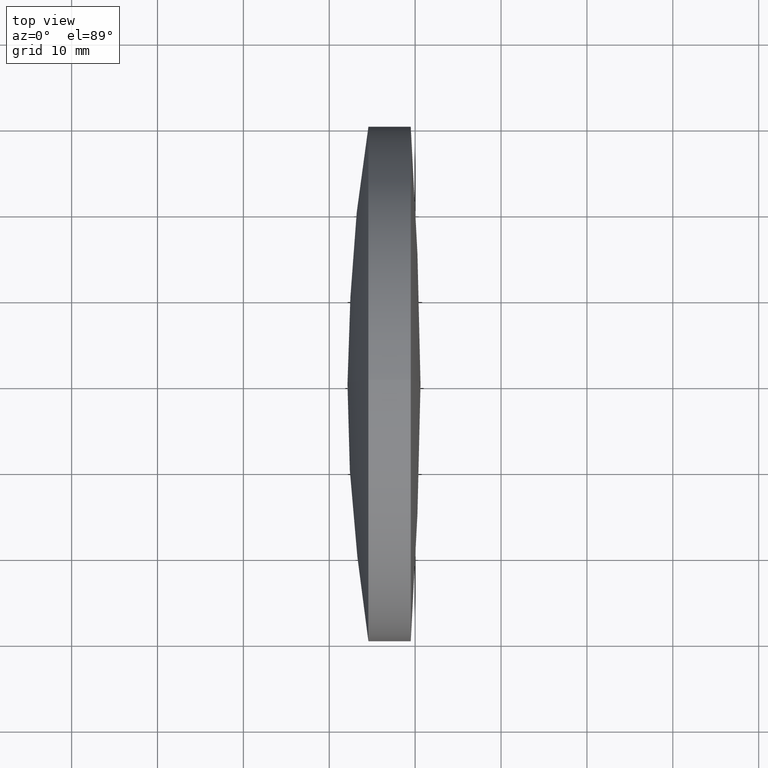
[diagram: clean part render]
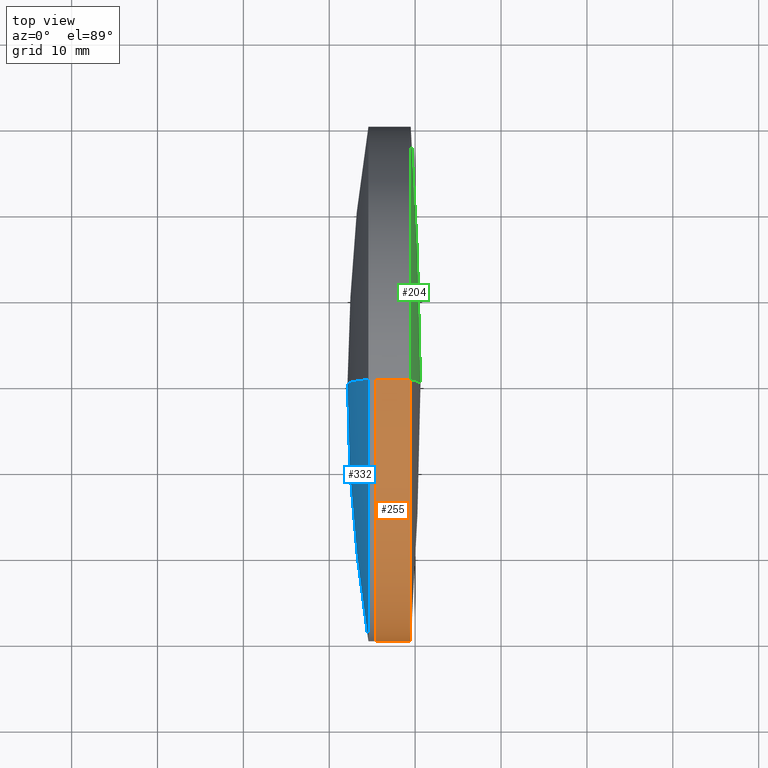
[diagram: same view with three faces highlighted in distinct colors, each labeled with its STEP entity id]
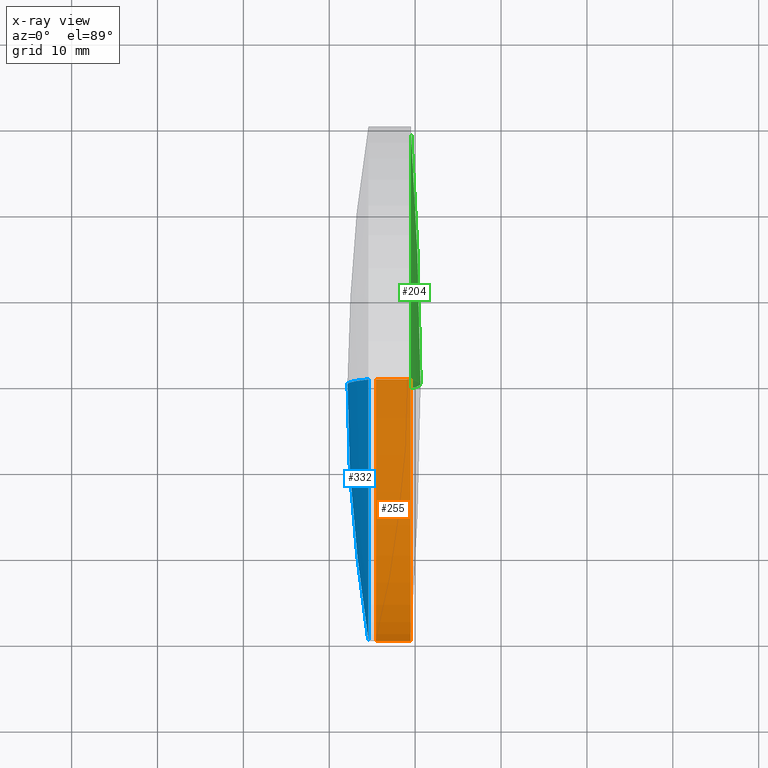
[diagram: x-ray of the same camera — body ghosted, the three highlighted faces saturated]
A machine part, top view with three faces highlighted in distinct colors.
The next image is the same camera in x-ray (body ghosted, the three faces saturated) — at least one of them is partly hidden behind the body in this view.
Their STEP definitions:

[orange] entity #255 — the highlighted cylindrical surface (partial cylindrical patch) has radius 30 mm, axis along (-1, -0, -0).
#14 = ORIENTED_EDGE ( 'NONE', *, *, #132, .F. ) ;
#16 = DIRECTION ( 'NONE',  ( -1.000000000000000000, -0.0000000000000000000, -0.0000000000000000000 ) ) ;
#22 = CARTESIAN_POINT ( 'NONE',  ( -0.5519199926577972300, 3.673940397442057600E-015, -29.99999999999998600 ) ) ;
#28 = AXIS2_PLACEMENT_3D ( 'NONE', #120, #16, #295 ) ;
#32 = CYLINDRICAL_SURFACE ( 'NONE', #312, 29.99999999999998600 ) ;
#61 = DIRECTION ( 'NONE',  ( -1.000000000000000000, -0.0000000000000000000, -0.0000000000000000000 ) ) ;
#62 = CIRCLE ( 'NONE', #141, 29.99999999999995000 ) ;
#63 = VERTEX_POINT ( 'NONE', #140 ) ;
#75 = CARTESIAN_POINT ( 'NONE',  ( 335.4079976636520000, 0.0000000000000000000, 30.00000000000001100 ) ) ;
#86 = EDGE_CURVE ( 'NONE', #227, #231, #62, .T. ) ;
#94 = CIRCLE ( 'NONE', #28, 30.00000000000002500 ) ;
#113 = VERTEX_POINT ( 'NONE', #75 ) ;
#115 = ORIENTED_EDGE ( 'NONE', *, *, #86, .T. ) ;
#120 = CARTESIAN_POINT ( 'NONE',  ( 335.4079976636520000, 0.0000000000000000000, 0.0000000000000000000 ) ) ;
#132 = EDGE_CURVE ( 'NONE', #227, #63, #306, .T. ) ;
#140 = CARTESIAN_POINT ( 'NONE',  ( 335.4079976636520000, 3.673940397442060800E-015, -30.00000000000001100 ) ) ;
#141 = AXIS2_PLACEMENT_3D ( 'NONE', #246, #183, #282 ) ;
#161 = ORIENTED_EDGE ( 'NONE', *, *, #197, .T. ) ;
#170 = EDGE_CURVE ( 'NONE', #63, #113, #94, .T. ) ;
#175 = CARTESIAN_POINT ( 'NONE',  ( -0.5519199926577972300, 0.0000000000000000000, 0.0000000000000000000 ) ) ;
#177 = CARTESIAN_POINT ( 'NONE',  ( 339.4863533443066800, 0.0000000000000000000, 29.99999999999995000 ) ) ;
#183 = DIRECTION ( 'NONE',  ( -1.000000000000000000, -0.0000000000000000000, -0.0000000000000000000 ) ) ;
#197 = EDGE_CURVE ( 'NONE', #231, #113, #331, .T. ) ;
#199 = FACE_OUTER_BOUND ( 'NONE', #209, .T. ) ;
#209 = EDGE_LOOP ( 'NONE', ( #14, #115, #161, #340 ) ) ;
#227 = VERTEX_POINT ( 'NONE', #262 ) ;
#231 = VERTEX_POINT ( 'NONE', #177 ) ;
#239 = VECTOR ( 'NONE', #272, 1000.000000000000000 ) ;
#246 = CARTESIAN_POINT ( 'NONE',  ( 339.4863533443066800, 0.0000000000000000000, 0.0000000000000000000 ) ) ;
#255 = ADVANCED_FACE ( 'NONE', ( #199 ), #32, .T. ) ;
#262 = CARTESIAN_POINT ( 'NONE',  ( 339.4863533443066800, 3.673940397442055200E-015, -29.99999999999995000 ) ) ;
#272 = DIRECTION ( 'NONE',  ( -1.000000000000000000, -0.0000000000000000000, -0.0000000000000000000 ) ) ;
#282 = DIRECTION ( 'NONE',  ( 0.0000000000000000000, 0.0000000000000000000, 1.000000000000000000 ) ) ;
#295 = DIRECTION ( 'NONE',  ( 0.0000000000000000000, 0.0000000000000000000, 1.000000000000000000 ) ) ;
#305 = DIRECTION ( 'NONE',  ( 0.0000000000000000000, 0.0000000000000000000, 1.000000000000000000 ) ) ;
#306 = LINE ( 'NONE', #22, #239 ) ;
#312 = AXIS2_PLACEMENT_3D ( 'NONE', #175, #61, #305 ) ;
#316 = CARTESIAN_POINT ( 'NONE',  ( -0.5519199926577972300, 0.0000000000000000000, 29.99999999999998600 ) ) ;
#319 = VECTOR ( 'NONE', #344, 1000.000000000000000 ) ;
#331 = LINE ( 'NONE', #316, #319 ) ;
#340 = ORIENTED_EDGE ( 'NONE', *, *, #170, .F. ) ;
#344 = DIRECTION ( 'NONE',  ( -1.000000000000000000, -0.0000000000000000000, -0.0000000000000000000 ) ) ;

[blue] entity #332 — the highlighted spherical surface has radius 186.1 mm.
#11 = AXIS2_PLACEMENT_3D ( 'NONE', #67, #30, #281 ) ;
#17 = EDGE_CURVE ( 'NONE', #201, #33, #265, .T. ) ;
#23 = CIRCLE ( 'NONE', #49, 186.1000000000000200 ) ;
#30 = DIRECTION ( 'NONE',  ( 0.0000000000000000000, 1.000000000000000000, 0.0000000000000000000 ) ) ;
#33 = VERTEX_POINT ( 'NONE', #77 ) ;
#34 = ORIENTED_EDGE ( 'NONE', *, *, #241, .T. ) ;
#49 = AXIS2_PLACEMENT_3D ( 'NONE', #274, #76, #269 ) ;
#67 = CARTESIAN_POINT ( 'NONE',  ( 518.2226255512254100, 0.0000000000000000000, -3.517525629549590600E-015 ) ) ;
#76 = DIRECTION ( 'NONE',  ( 0.0000000000000000000, -1.000000000000000000, 0.0000000000000000000 ) ) ;
#77 = CARTESIAN_POINT ( 'NONE',  ( 332.1226255512253800, 0.0000000000000000000, 7.877812836516531800E-015 ) ) ;
#87 = VERTEX_POINT ( 'NONE', #343 ) ;
#145 = ORIENTED_EDGE ( 'NONE', *, *, #17, .F. ) ;
#148 = DIRECTION ( 'NONE',  ( -1.000000000000000000, -0.0000000000000000000, -0.0000000000000000000 ) ) ;
#156 = EDGE_CURVE ( 'NONE', #201, #87, #172, .T. ) ;
#172 = CIRCLE ( 'NONE', #283, 29.99999999999999600 ) ;
#195 = CARTESIAN_POINT ( 'NONE',  ( 518.2226255512254100, 0.0000000000000000000, -3.517525629549590600E-015 ) ) ;
#201 = VERTEX_POINT ( 'NONE', #254 ) ;
#225 = DIRECTION ( 'NONE',  ( 0.0000000000000000000, -1.224646799147353000E-016, 1.000000000000000000 ) ) ;
#234 = CARTESIAN_POINT ( 'NONE',  ( 334.5565971191825300, 0.0000000000000000000, 0.0000000000000000000 ) ) ;
#241 = EDGE_CURVE ( 'NONE', #87, #33, #23, .T. ) ;
#254 = CARTESIAN_POINT ( 'NONE',  ( 334.5565971191825300, 3.673940397442056800E-015, -29.99999999999998200 ) ) ;
#258 = SPHERICAL_SURFACE ( 'NONE', #11, 186.1000000000000200 ) ;
#265 = CIRCLE ( 'NONE', #297, 186.1000000000000200 ) ;
#267 = ORIENTED_EDGE ( 'NONE', *, *, #156, .T. ) ;
#269 = DIRECTION ( 'NONE',  ( 0.0000000000000000000, 0.0000000000000000000, -1.000000000000000000 ) ) ;
#274 = CARTESIAN_POINT ( 'NONE',  ( 518.2226255512254100, 0.0000000000000000000, -3.517525629549590600E-015 ) ) ;
#281 = DIRECTION ( 'NONE',  ( 0.0000000000000000000, 0.0000000000000000000, 1.000000000000000000 ) ) ;
#283 = AXIS2_PLACEMENT_3D ( 'NONE', #234, #148, #289 ) ;
#289 = DIRECTION ( 'NONE',  ( 0.0000000000000000000, 0.0000000000000000000, 1.000000000000000000 ) ) ;
#293 = DIRECTION ( 'NONE',  ( -0.0000000000000000000, 1.000000000000000000, 1.224646799147353200E-016 ) ) ;
#297 = AXIS2_PLACEMENT_3D ( 'NONE', #195, #293, #225 ) ;
#311 = EDGE_LOOP ( 'NONE', ( #145, #267, #34 ) ) ;
#332 = ADVANCED_FACE ( 'NONE', ( #337 ), #258, .T. ) ;
#337 = FACE_OUTER_BOUND ( 'NONE', #311, .T. ) ;
#343 = CARTESIAN_POINT ( 'NONE',  ( 334.5565971191825300, 0.0000000000000000000, 29.99999999999997900 ) ) ;

[green] entity #204 — the highlighted spherical surface has radius 396.6 mm.
#2 = ORIENTED_EDGE ( 'NONE', *, *, #171, .F. ) ;
#5 = CARTESIAN_POINT ( 'NONE',  ( -55.97737444877426300, 0.0000000000000000000, 0.0000000000000000000 ) ) ;
#7 = EDGE_CURVE ( 'NONE', #15, #227, #206, .T. ) ;
#15 = VERTEX_POINT ( 'NONE', #129 ) ;
#26 = DIRECTION ( 'NONE',  ( 0.0000000000000000000, 0.0000000000000000000, 1.000000000000000000 ) ) ;
#31 = CIRCLE ( 'NONE', #235, 29.99999999999995000 ) ;
#42 = CARTESIAN_POINT ( 'NONE',  ( 339.4863533443066800, 0.0000000000000000000, 0.0000000000000000000 ) ) ;
#47 = EDGE_CURVE ( 'NONE', #15, #231, #92, .T. ) ;
#66 = DIRECTION ( 'NONE',  ( -1.000000000000000000, -0.0000000000000000000, -0.0000000000000000000 ) ) ;
#81 = CARTESIAN_POINT ( 'NONE',  ( -55.97737444877426300, 0.0000000000000000000, 0.0000000000000000000 ) ) ;
#89 = AXIS2_PLACEMENT_3D ( 'NONE', #251, #220, #104 ) ;
#92 = CIRCLE ( 'NONE', #244, 396.6000000000000200 ) ;
#104 = DIRECTION ( 'NONE',  ( 0.0000000000000000000, -1.224646799147353200E-016, 1.000000000000000000 ) ) ;
#123 = DIRECTION ( 'NONE',  ( 0.0000000000000000000, -1.000000000000000000, 0.0000000000000000000 ) ) ;
#124 = AXIS2_PLACEMENT_3D ( 'NONE', #81, #247, #26 ) ;
#129 = CARTESIAN_POINT ( 'NONE',  ( 340.6226255512257200, 0.0000000000000000000, 2.428474602709201300E-014 ) ) ;
#149 = ORIENTED_EDGE ( 'NONE', *, *, #47, .F. ) ;
#171 = EDGE_CURVE ( 'NONE', #231, #227, #31, .T. ) ;
#177 = CARTESIAN_POINT ( 'NONE',  ( 339.4863533443066800, 0.0000000000000000000, 29.99999999999995000 ) ) ;
#188 = SPHERICAL_SURFACE ( 'NONE', #124, 396.6000000000000200 ) ;
#196 = EDGE_LOOP ( 'NONE', ( #149, #245, #2 ) ) ;
#204 = ADVANCED_FACE ( 'NONE', ( #333 ), #188, .T. ) ;
#206 = CIRCLE ( 'NONE', #89, 396.6000000000000200 ) ;
#220 = DIRECTION ( 'NONE',  ( -0.0000000000000000000, 1.000000000000000000, 1.224646799147353200E-016 ) ) ;
#227 = VERTEX_POINT ( 'NONE', #262 ) ;
#231 = VERTEX_POINT ( 'NONE', #177 ) ;
#233 = DIRECTION ( 'NONE',  ( 0.0000000000000000000, 0.0000000000000000000, 1.000000000000000000 ) ) ;
#235 = AXIS2_PLACEMENT_3D ( 'NONE', #42, #66, #233 ) ;
#238 = DIRECTION ( 'NONE',  ( 0.0000000000000000000, 0.0000000000000000000, -1.000000000000000000 ) ) ;
#244 = AXIS2_PLACEMENT_3D ( 'NONE', #5, #123, #238 ) ;
#245 = ORIENTED_EDGE ( 'NONE', *, *, #7, .T. ) ;
#247 = DIRECTION ( 'NONE',  ( 0.0000000000000000000, 1.000000000000000000, 0.0000000000000000000 ) ) ;
#251 = CARTESIAN_POINT ( 'NONE',  ( -55.97737444877426300, 0.0000000000000000000, 0.0000000000000000000 ) ) ;
#262 = CARTESIAN_POINT ( 'NONE',  ( 339.4863533443066800, 3.673940397442055200E-015, -29.99999999999995000 ) ) ;
#333 = FACE_OUTER_BOUND ( 'NONE', #196, .T. ) ;